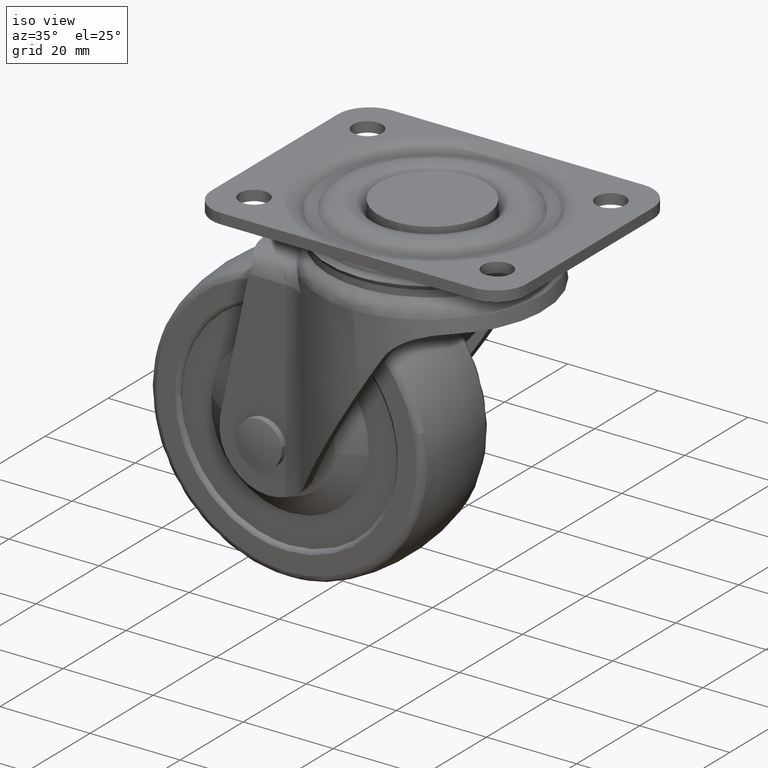
[diagram: clean part render]
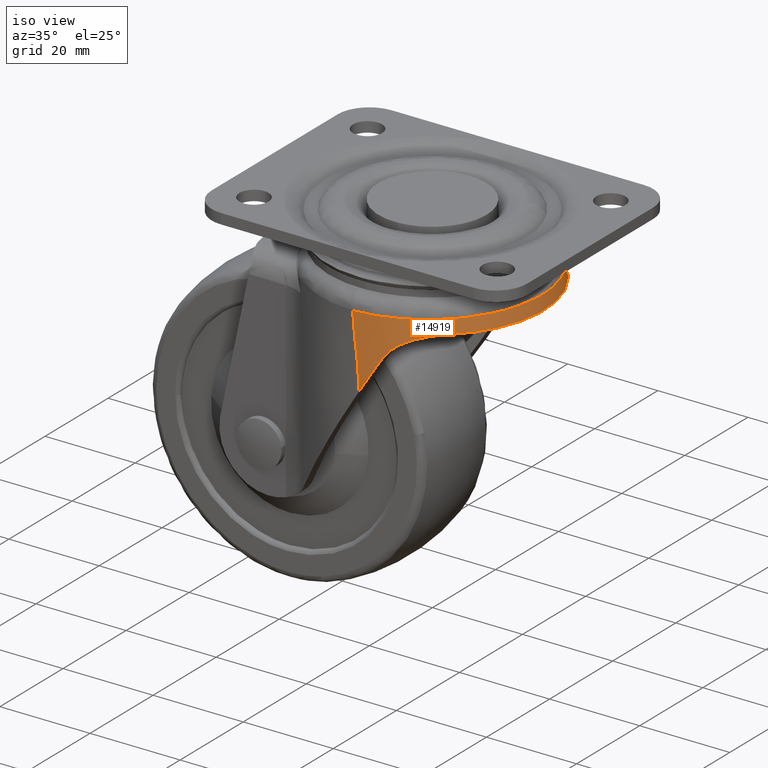
[diagram: same view with one face highlighted and labeled with its STEP entity id]
A machine part, iso view. The second image highlights one B-rep face of the part: STEP entity #14919.
In plain terms, the highlighted face is a freeform B-spline surface patch.
Its self-contained STEP definition (entity closure, byte-faithful):
#11290=CARTESIAN_POINT('',(-0.374123405536636,24.747172038186800,-13.036091615854801));
#11291=VERTEX_POINT('',#11290);
#11469=CARTESIAN_POINT('',(-0.372490450672473,-24.747196701459401,-13.035959580757240));
#11470=VERTEX_POINT('',#11469);
#11488=CARTESIAN_POINT('',(-0.374123405536636,24.747172038186800,-13.036091615854801));
#11489=CARTESIAN_POINT('',(-0.130458357808917,24.741544482917838,-13.032389946790310));
#11490=CARTESIAN_POINT('',(0.355813692695487,24.730313808410010,-13.025002682087971));
#11491=CARTESIAN_POINT('',(1.082644272773470,24.687084002757238,-13.013935448175060));
#11492=CARTESIAN_POINT('',(1.804834377046261,24.624905831932349,-13.002969377928860));
#11493=CARTESIAN_POINT('',(2.521788524342565,24.542194482832780,-12.992141906778389));
#11494=CARTESIAN_POINT('',(3.232962482304202,24.439775020553419,-12.981491260380659));
#11495=CARTESIAN_POINT('',(3.937818590192311,24.317848533367989,-12.971049535610200));
#11496=CARTESIAN_POINT('',(4.635837978741973,24.176798777337719,-12.960844751499060));
#11497=CARTESIAN_POINT('',(5.326517606978340,24.016976541934898,-12.950900514134419));
#11498=CARTESIAN_POINT('',(6.009371303302414,23.838756126778129,-12.941236317745080));
#11499=CARTESIAN_POINT('',(6.683929704557595,23.642519399308618,-12.931867677019479));
#11500=CARTESIAN_POINT('',(7.349740453058637,23.428659135496670,-12.922806304410550));
#11501=CARTESIAN_POINT('',(8.006368290527048,23.197577237915208,-12.914060275062530));
#11502=CARTESIAN_POINT('',(8.653395145956882,22.949684327541650,-12.905634194179241));
#11503=CARTESIAN_POINT('',(9.290420192540250,22.685398981344171,-12.897529362467180));
#11504=CARTESIAN_POINT('',(9.917059881251266,22.405147076371200,-12.889743940415871));
#11505=CARTESIAN_POINT('',(10.532947950024811,22.109361118620729,-12.882273110822860));
#11506=CARTESIAN_POINT('',(11.137735409926201,21.798479589704279,-12.875109239425210));
#11507=CARTESIAN_POINT('',(11.731090508545670,21.472946303849621,-12.868242033123110));
#11508=CARTESIAN_POINT('',(12.312698673093200,21.133209775705449,-12.861658696446749));
#11509=CARTESIAN_POINT('',(12.882262427954990,20.779722607628120,-12.855344082755931));
#11510=CARTESIAN_POINT('',(13.439501309929661,20.412940864462769,-12.849280852153640));
#11511=CARTESIAN_POINT('',(13.984151698979719,20.033323557004550,-12.843449590768939));
#11512=CARTESIAN_POINT('',(14.515966872780520,19.641331786922720,-12.837829058549019));
#11513=CARTESIAN_POINT('',(15.034716146764101,19.237429211858789,-12.832395945524020));
#11514=CARTESIAN_POINT('',(15.540187320711620,18.822077687058862,-12.827126432947180));
#11515=CARTESIAN_POINT('',(16.032176798002169,18.395750845316940,-12.821991051185270));
#11516=CARTESIAN_POINT('',(16.510525298437589,17.958881293532041,-12.816974352867540));
#11517=CARTESIAN_POINT('',(17.996397118231702,16.529416141139890,-12.801069135436920));
#11518=CARTESIAN_POINT('',(20.231106405518030,13.839944251130250,-12.777948408507870));
#11519=CARTESIAN_POINT('',(22.561868195208419,9.523807492263385,-12.756407204733691));
#11520=CARTESIAN_POINT('',(23.993296327419021,4.848010729088862,-12.744476706387969));
#11521=CARTESIAN_POINT('',(24.474723874414231,-0.008665492077881,-12.740888424551970));
#11522=CARTESIAN_POINT('',(23.990228497122910,-4.865948260870710,-12.744576615940410));
#11523=CARTESIAN_POINT('',(22.554635305592349,-9.543106351715748,-12.756666511912330));
#11524=CARTESIAN_POINT('',(20.219265988969980,-13.859068627631210,-12.778281490666391));
#11525=CARTESIAN_POINT('',(17.861483621136600,-16.691376132349550,-12.802759263937890));
#11526=CARTESIAN_POINT('',(16.083591613923691,-18.360374793667219,-12.821653651945820));
#11527=CARTESIAN_POINT('',(15.157670411913060,-19.148650290056629,-12.831250190442899));
#11528=CARTESIAN_POINT('',(14.185494377837079,-19.897412837932830,-12.841423835690390));
#11529=CARTESIAN_POINT('',(13.168404240075830,-20.603757814157269,-12.852294575218460));
#11530=CARTESIAN_POINT('',(12.108027012047470,-21.264673354008409,-12.864009449480720));
#11531=CARTESIAN_POINT('',(11.006168945158221,-21.877213664393349,-12.876678629840850));
#11532=CARTESIAN_POINT('',(9.864848166488333,-22.438467790613991,-12.890388614095370));
#11533=CARTESIAN_POINT('',(8.686288420223562,-22.945588841863689,-12.905194322240710));
#11534=CARTESIAN_POINT('',(7.472922038185852,-23.395791661307548,-12.921116741997730));
#11535=CARTESIAN_POINT('',(6.227390115393146,-23.786419473917860,-12.938139085370549));
#11536=CARTESIAN_POINT('',(4.952538818826319,-24.114766371924588,-12.956202727267691));
#11537=CARTESIAN_POINT('',(3.651428136892319,-24.378820858177960,-12.975205128075830));
#11538=CARTESIAN_POINT('',(2.327287740419298,-24.574531182005732,-12.994989658779190));
#11539=CARTESIAN_POINT('',(0.983667482278854,-24.706215679880881,-13.015366063020750));
#11540=CARTESIAN_POINT('',(0.080786570143916,-24.733499362145320,-13.029076482453631));
#11541=CARTESIAN_POINT('',(-0.372490450672473,-24.747196701459401,-13.035959580757240));
#11542=B_SPLINE_CURVE_WITH_KNOTS('',3,(#11488,#11489,#11490,#11491,#11492,#11493,#11494,#11495,#11496,#11497,#11498,#11499,#11500,#11501,#11502,#11503,#11504,#11505,#11506,#11507,#11508,#11509,#11510,#11511,#11512,#11513,#11514,#11515,#11516,#11517,#11518,#11519,#11520,#11521,#11522,#11523,#11524,#11525,#11526,#11527,#11528,#11529,#11530,#11531,#11532,#11533,#11534,#11535,#11536,#11537,#11538,#11539,#11540,#11541),.UNSPECIFIED.,.F.,.U.,(4,1,1,1,1,1,1,1,1,1,1,1,1,1,1,1,1,1,1,1,1,1,1,1,1,1,1,1,1,1,1,1,1,1,1,1,1,1,1,1,1,1,1,1,1,1,1,1,1,1,1,4),(0.0,0.009442116681211,0.018843233703363,0.028203289980840,0.037522225925448,0.046799983733348,0.056036507667265,0.065231744333329,0.074385642951931,0.083498155621978,0.092569237577956,0.101598847439252,0.110586947451162,0.119533503717109,0.128438486421558,0.137301870043179,0.146123633557860,0.154903760631141,0.163642239799764,0.172339064641978,0.180994233936362,0.189607751808888,0.198179627868043,0.206709877327841,0.215198521118585,0.223645585985304,0.232051104573805,0.240415115504328,0.248737663432825,0.311926334616222,0.374857012576574,0.437568144037476,0.500106792519258,0.562687560567406,0.625432358919227,0.688388312192617,0.751593919322072,0.767145727228615,0.782841441120179,0.798681297887720,0.814665463038795,0.830794032688197,0.847067036066244,0.863484438537450,0.880046145116743,0.896752004464897,0.913601813339430,0.930595321471984,0.947732236838279,0.965012231282224,0.982434946451680,1.0),.UNSPECIFIED.);
#11543=EDGE_CURVE('',#11291,#11470,#11542,.T.);
#13958=CARTESIAN_POINT('',(1.059833744774484,24.750000000000000,-28.873798671630450));
#13959=VERTEX_POINT('',#13958);
#13967=CARTESIAN_POINT('',(5.846178269025740,24.169048228928499,-21.204667369981049));
#13968=VERTEX_POINT('',#13967);
#13969=CARTESIAN_POINT('',(1.059833744774481,24.750000000000000,-28.873798671630450));
#13970=CARTESIAN_POINT('',(1.856218763067649,24.750000000000000,-27.597755703764030));
#13971=CARTESIAN_POINT('',(2.653200976864202,24.706818037493139,-26.320755853102199));
#13972=CARTESIAN_POINT('',(4.248570288356179,24.518869885030970,-23.764505114681320));
#13973=CARTESIAN_POINT('',(5.046956278167305,24.374183803880658,-22.485256002078689));
#13974=CARTESIAN_POINT('',(5.846178269025740,24.169048228928510,-21.204667369981049));
#13975=B_SPLINE_CURVE_WITH_KNOTS('',3,(#13969,#13970,#13971,#13972,#13973,#13974),.UNSPECIFIED.,.F.,.U.,(4,2,4),(0.0,0.500000000000000,1.0),.UNSPECIFIED.);
#13976=EDGE_CURVE('',#13959,#13968,#13975,.T.);
#14102=CARTESIAN_POINT('',(5.846178269025740,-24.169048228928499,-21.204667369981049));
#14103=VERTEX_POINT('',#14102);
#14109=CARTESIAN_POINT('',(1.059833744774484,-24.750000000000000,-28.873798671630450));
#14110=VERTEX_POINT('',#14109);
#14111=CARTESIAN_POINT('',(5.846178269025740,-24.169048228928510,-21.204667369981049));
#14112=CARTESIAN_POINT('',(5.046956278167306,-24.374183803880658,-22.485256002078689));
#14113=CARTESIAN_POINT('',(4.248570288356179,-24.518869885030970,-23.764505114681320));
#14114=CARTESIAN_POINT('',(2.653200976864202,-24.706818037493139,-26.320755853102192));
#14115=CARTESIAN_POINT('',(1.856218763067646,-24.750000000000000,-27.597755703764030));
#14116=CARTESIAN_POINT('',(1.059833744774479,-24.750000000000000,-28.873798671630450));
#14117=B_SPLINE_CURVE_WITH_KNOTS('',3,(#14111,#14112,#14113,#14114,#14115,#14116),.UNSPECIFIED.,.F.,.U.,(4,2,4),(0.0,0.500000000000000,1.0),.UNSPECIFIED.);
#14118=EDGE_CURVE('',#14103,#14110,#14117,.T.);
#14192=CARTESIAN_POINT('',(16.732215000000000,18.168811623262901,-15.750389999999999));
#14193=VERTEX_POINT('',#14192);
#14194=CARTESIAN_POINT('',(16.732215000000000,-18.168811623262901,-15.750389999999999));
#14195=VERTEX_POINT('',#14194);
#14196=CARTESIAN_POINT('',(16.732215000000000,18.168811623262890,-15.750389999999999));
#14197=CARTESIAN_POINT('',(16.890088959969340,18.024215368374989,-15.750389999999999));
#14198=CARTESIAN_POINT('',(17.046629920706959,17.877078324604199,-15.750389999999999));
#14199=CARTESIAN_POINT('',(17.355363098272100,17.579256017535030,-15.750389999999999));
#14200=CARTESIAN_POINT('',(17.507473176557721,17.428663695648709,-15.750389999999999));
#14201=CARTESIAN_POINT('',(17.957107868722439,16.971898348820272,-15.750389999999999));
#14202=CARTESIAN_POINT('',(18.247941489476251,16.660740332273139,-15.750389999999999));
#14203=CARTESIAN_POINT('',(19.094095166780932,15.707636835498031,-15.750389999999999));
#14204=CARTESIAN_POINT('',(19.623135653791021,15.046112283659740,-15.750389999999999));
#14205=CARTESIAN_POINT('',(20.611648976487210,13.671233182352561,-15.750389999999999));
#14206=CARTESIAN_POINT('',(21.071124817855480,12.957880872207490,-15.750389999999999));
#14207=CARTESIAN_POINT('',(21.706923389303750,11.848056479575890,-15.750390000000010));
#14208=CARTESIAN_POINT('',(21.910030429562038,11.471282822893780,-15.750389999999999));
#14209=CARTESIAN_POINT('',(22.297585944926510,10.704883829359620,-15.750389999999999));
#14210=CARTESIAN_POINT('',(22.480496893741591,10.318323139794691,-15.750389999999999));
#14211=CARTESIAN_POINT('',(22.997320803829030,9.148771376290243,-15.750389999999999));
#14212=CARTESIAN_POINT('',(23.299408029306441,8.355936342155186,-15.750389999999999));
#14213=CARTESIAN_POINT('',(23.820213993050459,6.744479719413839,-15.750389999999999));
#14214=CARTESIAN_POINT('',(24.038931685254578,5.925857807251858,-15.750389999999999));
#14215=CARTESIAN_POINT('',(24.303643698713309,4.678325773590491,-15.750389999999999));
#14216=CARTESIAN_POINT('',(24.381299668524338,4.259208858762671,-15.750389999999999));
#14217=CARTESIAN_POINT('',(24.481610993364971,3.625531159920188,-15.750389999999999));
#14218=CARTESIAN_POINT('',(24.512351243052571,3.413471099901658,-15.750389999999999));
#14219=CARTESIAN_POINT('',(24.568370058817671,2.987661636485330,-15.750389999999999));
#14220=CARTESIAN_POINT('',(24.593535642016239,2.774760117756783,-15.750389999999999));
#14221=CARTESIAN_POINT('',(24.705212634725530,1.711067651959693,-15.750389999999999));
#14222=CARTESIAN_POINT('',(24.749499844019439,0.861870739317540,-15.750389999999999));
#14223=CARTESIAN_POINT('',(24.750493392123889,-0.833107550623558,-15.750389999999999));
#14224=CARTESIAN_POINT('',(24.707193886343418,-1.678888699991399,-15.750389999999999));
#14225=CARTESIAN_POINT('',(24.532688036829050,-3.367022751093982,-15.750389999999991));
#14226=CARTESIAN_POINT('',(24.401491024922830,-4.209376016757371,-15.750389999999999));
#14227=CARTESIAN_POINT('',(24.048001278221349,-5.890529938257131,-15.750389999999999));
#14228=CARTESIAN_POINT('',(23.828750415281569,-6.714760309128755,-15.750389999999999));
#14229=CARTESIAN_POINT('',(23.308650930782878,-8.330532765469002,-15.750389999999991));
#14230=CARTESIAN_POINT('',(23.007749327082021,-9.122277162303121,-15.750389999999999));
#14231=CARTESIAN_POINT('',(22.324702017986411,-10.673663903825030,-15.750389999999999));
#14232=CARTESIAN_POINT('',(21.942560629871149,-11.433307954403240,-15.750389999999999));
#14233=CARTESIAN_POINT('',(21.306805387974080,-12.548061297493639,-15.750389999999991));
#14234=CARTESIAN_POINT('',(21.083994838750190,-12.916142470657970,-15.750389999999999));
#14235=CARTESIAN_POINT('',(20.621213997188370,-13.637482051580569,-15.750389999999999));
#14236=CARTESIAN_POINT('',(20.380900667959011,-13.991421321201329,-15.750389999999999));
#14237=CARTESIAN_POINT('',(19.633431447807620,-15.033228216244520,-15.750389999999999));
#14238=CARTESIAN_POINT('',(19.099816538618050,-15.701137890187480,-15.750389999999999));
#14239=CARTESIAN_POINT('',(18.388403352452428,-16.502538318089190,-15.750389999999999));
#14240=CARTESIAN_POINT('',(18.243767262743042,-16.661276201841151,-15.750389999999999));
#14241=CARTESIAN_POINT('',(17.950609973516670,-16.974740262422539,-15.750389999999999));
#14242=CARTESIAN_POINT('',(17.802315951351609,-17.129231457713761,-15.750389999999999));
#14243=CARTESIAN_POINT('',(17.352352542430321,-17.586067175474881,-15.750389999999999));
#14244=CARTESIAN_POINT('',(17.045605329427602,-17.881778423094079,-15.750389999999991));
#14245=CARTESIAN_POINT('',(16.732214999999989,-18.168811623262901,-15.750389999999999));
#14246=B_SPLINE_CURVE_WITH_KNOTS('',3,(#14196,#14197,#14198,#14199,#14200,#14201,#14202,#14203,#14204,#14205,#14206,#14207,#14208,#14209,#14210,#14211,#14212,#14213,#14214,#14215,#14216,#14217,#14218,#14219,#14220,#14221,#14222,#14223,#14224,#14225,#14226,#14227,#14228,#14229,#14230,#14231,#14232,#14233,#14234,#14235,#14236,#14237,#14238,#14239,#14240,#14241,#14242,#14243,#14244,#14245),.UNSPECIFIED.,.F.,.U.,(4,2,2,2,2,2,2,2,2,2,2,2,2,2,2,2,2,2,2,2,2,2,2,2,4),(0.0,0.015625000000000,0.031250000000000,0.062500000000000,0.125000000000000,0.187500000000000,0.218750000000000,0.250000000000000,0.312500000000000,0.375000000000000,0.406250000000000,0.421875000000000,0.437500000000000,0.500000000000000,0.562500000000000,0.625000000000000,0.687500000000000,0.750000000000000,0.812500000000000,0.843750000000000,0.875000000000000,0.937500000000000,0.953125000000000,0.968750000000000,1.0),.UNSPECIFIED.);
#14247=EDGE_CURVE('',#14193,#14195,#14246,.T.);
#14333=CARTESIAN_POINT('',(8.648219478329450,-23.260183114111250,-18.269844432147650));
#14334=VERTEX_POINT('',#14333);
#14335=CARTESIAN_POINT('',(8.648219478329450,-23.260183114111250,-18.269844432147650));
#14336=CARTESIAN_POINT('',(8.372661645794636,-23.368422411819878,-18.460083094379620));
#14337=CARTESIAN_POINT('',(8.106907282246420,-23.467190005719001,-18.663950832774610));
#14338=CARTESIAN_POINT('',(7.595597111725457,-23.648010538350139,-19.098776641858208));
#14339=CARTESIAN_POINT('',(7.350038904520523,-23.730060243149499,-19.329733339393499));
#14340=CARTESIAN_POINT('',(6.880218363650375,-23.879360442675871,-19.819210299257069));
#14341=CARTESIAN_POINT('',(6.655950869006774,-23.946609025389151,-20.077725826142281));
#14342=CARTESIAN_POINT('',(6.336806704875359,-24.037648463939131,-20.487071678143550));
#14343=CARTESIAN_POINT('',(6.233519258214598,-24.066291441463669,-20.626879357764359));
#14344=CARTESIAN_POINT('',(6.034460528082626,-24.120116191157500,-20.911593725632301));
#14345=CARTESIAN_POINT('',(5.938504745327912,-24.145350876983521,-21.056733207324640));
#14346=CARTESIAN_POINT('',(5.846178269025724,-24.169048228928510,-21.204667369981031));
#14347=B_SPLINE_CURVE_WITH_KNOTS('',3,(#14335,#14336,#14337,#14338,#14339,#14340,#14341,#14342,#14343,#14344,#14345,#14346),.UNSPECIFIED.,.F.,.U.,(4,2,2,2,2,4),(0.0,0.250000000000001,0.500000000000001,0.750000000000001,0.875000000000001,1.0),.UNSPECIFIED.);
#14348=EDGE_CURVE('',#14334,#14103,#14347,.T.);
#14390=CARTESIAN_POINT('',(8.648219478329450,23.260183114111150,-18.269844432147650));
#14391=VERTEX_POINT('',#14390);
#14392=CARTESIAN_POINT('',(5.846178269025736,24.169048228928510,-21.204667369981038));
#14393=CARTESIAN_POINT('',(6.030824909999713,24.121655145038901,-20.908809157756039));
#14394=CARTESIAN_POINT('',(6.228734558532389,24.068434868098549,-20.626067643608540));
#14395=CARTESIAN_POINT('',(6.649362409462962,23.948530014034031,-20.085805080916192));
#14396=CARTESIAN_POINT('',(6.872086130781796,23.881847266838289,-19.828288352969391));
#14397=CARTESIAN_POINT('',(7.341364420504148,23.732910851313061,-19.338186457934651));
#14398=CARTESIAN_POINT('',(7.587921126047126,23.650660783788151,-19.105602190759921));
#14399=CARTESIAN_POINT('',(7.975353132380754,23.513744240693029,-18.775681876717631));
#14400=CARTESIAN_POINT('',(8.107203807581346,23.465921037906259,-18.669091220984718));
#14401=CARTESIAN_POINT('',(8.374628218410475,23.366242478059039,-18.463833493613159));
#14402=CARTESIAN_POINT('',(8.510421197128679,23.314310369524058,-18.364977132359240));
#14403=CARTESIAN_POINT('',(8.648219478329427,23.260183114111140,-18.269844432147629));
#14404=B_SPLINE_CURVE_WITH_KNOTS('',3,(#14392,#14393,#14394,#14395,#14396,#14397,#14398,#14399,#14400,#14401,#14402,#14403),.UNSPECIFIED.,.F.,.U.,(4,2,2,2,2,4),(0.0,0.250000000000000,0.500000000000000,0.750000000000000,0.875000000000000,1.0),.UNSPECIFIED.);
#14405=EDGE_CURVE('',#13968,#14391,#14404,.T.);
#14447=CARTESIAN_POINT('',(8.648219478329443,23.260183114111129,-18.269844432147661));
#14448=CARTESIAN_POINT('',(9.312664774085185,22.999188565282982,-17.811126989685061));
#14449=CARTESIAN_POINT('',(9.992105077651013,22.697887711882149,-17.424975169988421));
#14450=CARTESIAN_POINT('',(11.024179923341530,22.180488859826440,-16.939939486808228));
#14451=CARTESIAN_POINT('',(11.370393785000189,21.997107742048922,-16.794042206789189));
#14452=CARTESIAN_POINT('',(11.892031483195399,21.704930184031522,-16.597626847633229));
#14453=CARTESIAN_POINT('',(12.153431200273801,21.554563403252612,-16.505031781131841));
#14454=CARTESIAN_POINT('',(12.415532368400729,21.397625936171998,-16.420662997770290));
#14455=CARTESIAN_POINT('',(12.590403999620380,21.291522427524828,-16.366226205346020));
#14456=CARTESIAN_POINT('',(12.677851771933669,21.237763924822868,-16.339932438171498));
#14457=CARTESIAN_POINT('',(13.461603451699601,20.749627599419849,-16.112386065292679));
#14458=CARTESIAN_POINT('',(14.141560919485631,20.281203962029021,-15.972282056741729));
#14459=CARTESIAN_POINT('',(15.465074789994510,19.276353425927230,-15.791193596398800));
#14460=CARTESIAN_POINT('',(16.108657673165720,18.739925784114099,-15.750389999999999));
#14461=CARTESIAN_POINT('',(16.732214999999989,18.168811623262890,-15.750389999999999));
#14462=B_SPLINE_CURVE_WITH_KNOTS('',3,(#14447,#14448,#14449,#14450,#14451,#14452,#14453,#14454,#14455,#14456,#14457,#14458,#14459,#14460,#14461),.UNSPECIFIED.,.F.,.U.,(4,2,2,1,2,2,2,4),(0.0,0.249999999999999,0.374999999999998,0.437499999999998,0.468749999999998,0.499999999999998,0.749999999999999,1.0),.UNSPECIFIED.);
#14463=EDGE_CURVE('',#14391,#14193,#14462,.T.);
#14509=CARTESIAN_POINT('',(16.732214999999989,-18.168811623262879,-15.750389999999999));
#14510=CARTESIAN_POINT('',(16.108680094564800,-18.739905248426410,-15.750389999999999));
#14511=CARTESIAN_POINT('',(15.465186207433570,-19.276254998543180,-15.791192052938561));
#14512=CARTESIAN_POINT('',(14.142022564388521,-20.280867297689738,-15.972205197453411));
#14513=CARTESIAN_POINT('',(13.462326086804060,-20.749130374132921,-16.112236736929660));
#14514=CARTESIAN_POINT('',(12.591954736711310,-21.291274069865160,-16.364855837564772));
#14515=CARTESIAN_POINT('',(12.416582259873820,-21.397678808260469,-16.419388441976821));
#14516=CARTESIAN_POINT('',(12.067225905935819,-21.604148022308578,-16.535573393340179));
#14517=CARTESIAN_POINT('',(11.892866608619180,-21.704454823250909,-16.597323596810192));
#14518=CARTESIAN_POINT('',(11.370972127910820,-21.996798941568990,-16.793802104246510));
#14519=CARTESIAN_POINT('',(11.024615993900090,-22.180264094094209,-16.939745099537671));
#14520=CARTESIAN_POINT('',(9.992202521343817,-22.697851163277349,-17.424908291625801));
#14521=CARTESIAN_POINT('',(9.312654460861136,-22.999192616324159,-17.811134109692969));
#14522=CARTESIAN_POINT('',(8.648219478329450,-23.260183114111250,-18.269844432147650));
#14523=B_SPLINE_CURVE_WITH_KNOTS('',3,(#14509,#14510,#14511,#14512,#14513,#14514,#14515,#14516,#14517,#14518,#14519,#14520,#14521,#14522),.UNSPECIFIED.,.F.,.U.,(4,2,2,2,2,2,4),(0.0,0.249999999999999,0.499999999999999,0.562499999999999,0.624999999999999,0.749999999999999,1.0),.UNSPECIFIED.);
#14524=EDGE_CURVE('',#14195,#14334,#14523,.T.);
#14838=CARTESIAN_POINT('',(-2.410625938698309,24.501276373967546,-29.775716610485716));
#14839=CARTESIAN_POINT('',(-2.676179793942119,24.501276373967546,-21.313012353926638));
#14840=CARTESIAN_POINT('',(-4.322111513238232,24.501276373967542,-13.007665223346667));
#14841=CARTESIAN_POINT('',(25.825469706500105,28.536772285691281,-28.889687295470509));
#14842=CARTESIAN_POINT('',(25.486976233818893,28.536772285691288,-18.102533972289997));
#14843=CARTESIAN_POINT('',(23.388956820961333,28.536772285691285,-7.515959021337963));
#14844=CARTESIAN_POINT('',(25.825469706500098,0.0,-28.889687295470495));
#14845=CARTESIAN_POINT('',(25.486976233818904,0.0,-18.102533972289997));
#14846=CARTESIAN_POINT('',(23.388956820961337,0.0,-7.515959021337963));
#14847=CARTESIAN_POINT('',(25.825469706500108,-28.536770126530843,-28.889687295470495));
#14848=CARTESIAN_POINT('',(25.486976233818886,-28.536770126530833,-18.102533972289990));
#14849=CARTESIAN_POINT('',(23.388956820961326,-28.536770126530833,-7.515959021337964));
#14850=CARTESIAN_POINT('',(-2.410624104405808,-24.501276636124114,-29.775716552926870));
#14851=CARTESIAN_POINT('',(-2.676177964387972,-24.501276636124118,-21.313012145365352));
#14852=CARTESIAN_POINT('',(-4.322109713052914,-24.501276636124118,-13.007664866590705));
#14860=(BOUNDED_SURFACE()B_SPLINE_SURFACE(2,2,((#14838,#14841,#14844,#14847,#14850),(#14839,#14842,#14845,#14848,#14851),(#14840,#14843,#14846,#14849,#14852)),.UNSPECIFIED.,.F.,.F.,.U.)B_SPLINE_SURFACE_WITH_KNOTS((3,3),(3,2,3),(39.942839001464847,61.491319323730472),(0.454272283720971,45.639623089179089,90.824971662354471),.UNSPECIFIED.)GEOMETRIC_REPRESENTATION_ITEM()RATIONAL_B_SPLINE_SURFACE(((0.958948640931407,0.630489337293204,0.965620063258084,0.630489353849600,0.958948608477792),(0.955731754067357,0.628374299239559,0.962380796456328,0.628374315740414,0.955731721722611),(0.958980825282752,0.630510497853306,0.965652471516519,0.630510514410257,0.958980792828047)))REPRESENTATION_ITEM('')SURFACE());
#14861=CARTESIAN_POINT('',(-4.546351E-015,24.750000000000000,-17.471764074454700));
#14862=VERTEX_POINT('',#14861);
#14863=CARTESIAN_POINT('',(-0.374123405536636,24.747172038186800,-13.036091615854801));
#14864=CARTESIAN_POINT('',(-0.304098007749451,24.748225039740561,-13.774532578334890));
#14865=CARTESIAN_POINT('',(-0.237902708641855,24.748926852938862,-14.513360218456979));
#14866=CARTESIAN_POINT('',(-0.113179523707196,24.749811896634949,-15.991986157464110));
#14867=CARTESIAN_POINT('',(-0.054796528262350,24.749994938938130,-16.731809021003240));
#14868=CARTESIAN_POINT('',(-4.546351E-015,24.750000000000000,-17.471764074454700));
#14869=B_SPLINE_CURVE_WITH_KNOTS('',3,(#14863,#14864,#14865,#14866,#14867,#14868),.UNSPECIFIED.,.F.,.U.,(4,2,4),(0.000162477279425,0.500000000000001,1.0),.UNSPECIFIED.);
#14870=EDGE_CURVE('',#11291,#14862,#14869,.T.);
#14871=ORIENTED_EDGE('',*,*,#14870,.F.);
#14872=ORIENTED_EDGE('',*,*,#11543,.T.);
#14873=CARTESIAN_POINT('',(1.515450E-015,-24.750000000000000,-17.471764074454700));
#14874=VERTEX_POINT('',#14873);
#14875=CARTESIAN_POINT('',(1.515450E-015,-24.750000000000000,-17.471764074454700));
#14876=CARTESIAN_POINT('',(-0.054524606804560,-24.749999044530060,-16.731784609135929));
#14877=CARTESIAN_POINT('',(-0.112635606626264,-24.749820109346551,-15.991937327188440));
#14878=CARTESIAN_POINT('',(-0.236814497760052,-24.748943282842749,-14.513267379447459));
#14879=CARTESIAN_POINT('',(-0.302737444350111,-24.748245583165779,-13.774420143289690));
#14880=CARTESIAN_POINT('',(-0.372490450672473,-24.747196701459401,-13.035959580757240));
#14881=B_SPLINE_CURVE_WITH_KNOTS('',3,(#14875,#14876,#14877,#14878,#14879,#14880),.UNSPECIFIED.,.F.,.U.,(4,2,4),(0.000165735571988,0.500165735571988,1.0),.UNSPECIFIED.);
#14882=EDGE_CURVE('',#14874,#11470,#14881,.T.);
#14883=ORIENTED_EDGE('',*,*,#14882,.F.);
#14884=CARTESIAN_POINT('',(1.059833744774488,-24.750000000000000,-28.873798671630450));
#14885=CARTESIAN_POINT('',(0.837287625421734,-24.750000000000000,-23.144210867187130));
#14886=CARTESIAN_POINT('',(0.0,-24.750000000000000,-17.471764074454690));
#14894=(BOUNDED_CURVE()B_SPLINE_CURVE(2,(#14884,#14885,#14886),.UNSPECIFIED.,.F.,.U.)CURVE()GEOMETRIC_REPRESENTATION_ITEM()QUASI_UNIFORM_CURVE()RATIONAL_B_SPLINE_CURVE((1.0,0.998549743531077,1.0))REPRESENTATION_ITEM(''));
#14895=EDGE_CURVE('',#14110,#14874,#14894,.T.);
#14896=ORIENTED_EDGE('',*,*,#14895,.F.);
#14897=ORIENTED_EDGE('',*,*,#14118,.F.);
#14898=ORIENTED_EDGE('',*,*,#14348,.F.);
#14899=ORIENTED_EDGE('',*,*,#14524,.F.);
#14900=ORIENTED_EDGE('',*,*,#14247,.F.);
#14901=ORIENTED_EDGE('',*,*,#14463,.F.);
#14902=ORIENTED_EDGE('',*,*,#14405,.F.);
#14903=ORIENTED_EDGE('',*,*,#13976,.F.);
#14904=CARTESIAN_POINT('',(-1.387779E-014,24.750000000000000,-17.471764074454640));
#14905=CARTESIAN_POINT('',(0.837287625421734,24.750000000000000,-23.144210867187173));
#14906=CARTESIAN_POINT('',(1.059833744774488,24.750000000000000,-28.873798671630428));
#14914=(BOUNDED_CURVE()B_SPLINE_CURVE(2,(#14904,#14905,#14906),.UNSPECIFIED.,.F.,.U.)CURVE()GEOMETRIC_REPRESENTATION_ITEM()QUASI_UNIFORM_CURVE()RATIONAL_B_SPLINE_CURVE((1.0,0.998549743531077,1.0))REPRESENTATION_ITEM(''));
#14915=EDGE_CURVE('',#14862,#13959,#14914,.T.);
#14916=ORIENTED_EDGE('',*,*,#14915,.F.);
#14917=EDGE_LOOP('',(#14871,#14872,#14883,#14896,#14897,#14898,#14899,#14900,#14901,#14902,#14903,#14916));
#14918=FACE_OUTER_BOUND('',#14917,.T.);
#14919=ADVANCED_FACE('',(#14918),#14860,.T.);